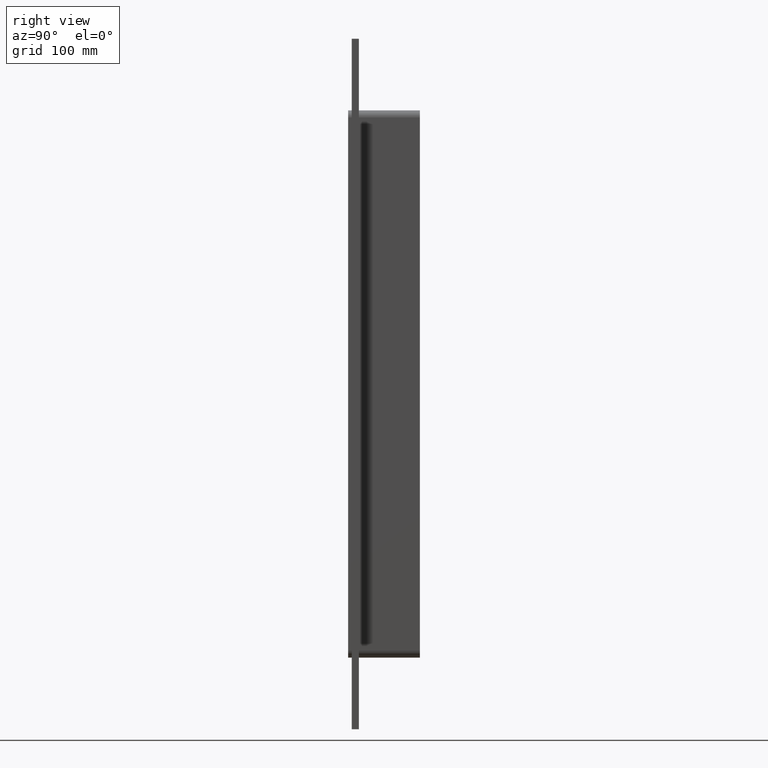
[diagram: clean part render]
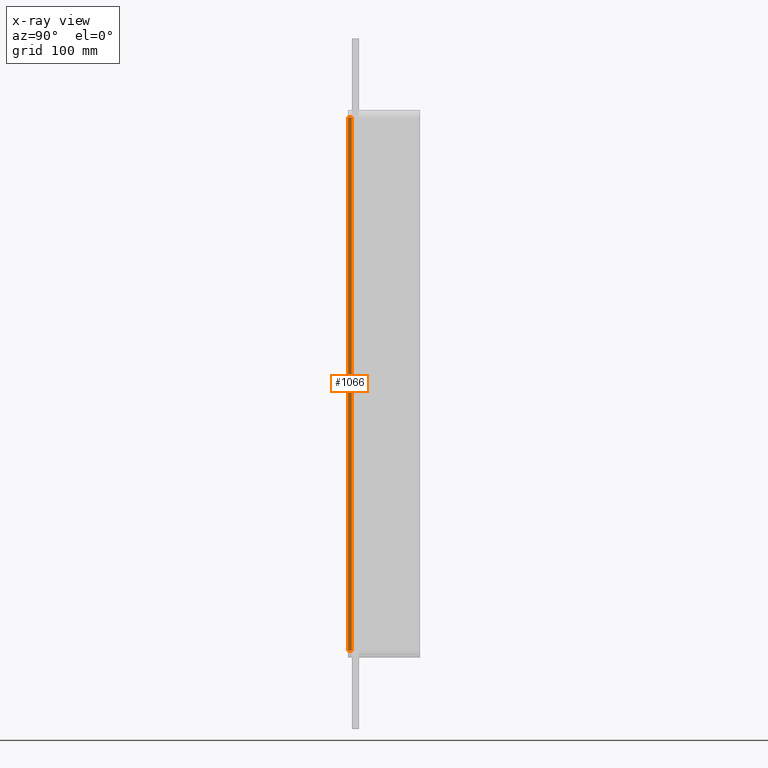
[diagram: x-ray — body ghosted, one internal face saturated and labeled with its STEP entity id]
A machine part, right view, then the same camera in x-ray: the body is ghosted and one INTERNAL B-rep face — a face not visible from any outside direction — is saturated and labeled: STEP entity #1066.
In plain terms, the highlighted planar face has unit normal (-1, 0, 0).
Its self-contained STEP definition (entity closure, byte-faithful):
#664=CARTESIAN_POINT('',(-36.25,0.0,223.0));
#665=VERTEX_POINT('',#664);
#715=CARTESIAN_POINT('',(-36.25,0.0,-222.99999999999997));
#716=VERTEX_POINT('',#715);
#724=CARTESIAN_POINT('',(-36.25,0.0,223.0));
#725=DIRECTION('',(0.0,0.0,-1.0));
#726=VECTOR('',#725,446.0);
#727=LINE('',#724,#726);
#728=EDGE_CURVE('',#665,#716,#727,.T.);
#975=CARTESIAN_POINT('',(-36.25,-3.0,-222.99999999999997));
#976=VERTEX_POINT('',#975);
#984=CARTESIAN_POINT('',(-36.25,-3.0,-222.99999999999997));
#985=DIRECTION('',(0.0,1.0,0.0));
#986=VECTOR('',#985,3.0);
#987=LINE('',#984,#986);
#988=EDGE_CURVE('',#976,#716,#987,.T.);
#1043=CARTESIAN_POINT('',(-36.25,0.0,-228.99999999999994));
#1044=DIRECTION('',(-1.0,0.0,0.0));
#1045=DIRECTION('',(0.0,0.0,1.0));
#1046=AXIS2_PLACEMENT_3D('',#1043,#1044,#1045);
#1047=PLANE('',#1046);
#1048=ORIENTED_EDGE('',*,*,#728,.T.);
#1049=ORIENTED_EDGE('',*,*,#988,.F.);
#1050=CARTESIAN_POINT('',(-36.25,-3.0,223.0));
#1051=VERTEX_POINT('',#1050);
#1052=CARTESIAN_POINT('',(-36.25,-3.0,223.0));
#1053=DIRECTION('',(0.0,0.0,-1.0));
#1054=VECTOR('',#1053,446.0);
#1055=LINE('',#1052,#1054);
#1056=EDGE_CURVE('',#1051,#976,#1055,.T.);
#1057=ORIENTED_EDGE('',*,*,#1056,.F.);
#1058=CARTESIAN_POINT('',(-36.25,0.0,223.0));
#1059=DIRECTION('',(0.0,-1.0,0.0));
#1060=VECTOR('',#1059,3.0);
#1061=LINE('',#1058,#1060);
#1062=EDGE_CURVE('',#665,#1051,#1061,.T.);
#1063=ORIENTED_EDGE('',*,*,#1062,.F.);
#1064=EDGE_LOOP('',(#1048,#1049,#1057,#1063));
#1065=FACE_OUTER_BOUND('',#1064,.T.);
#1066=ADVANCED_FACE('',(#1065),#1047,.T.);